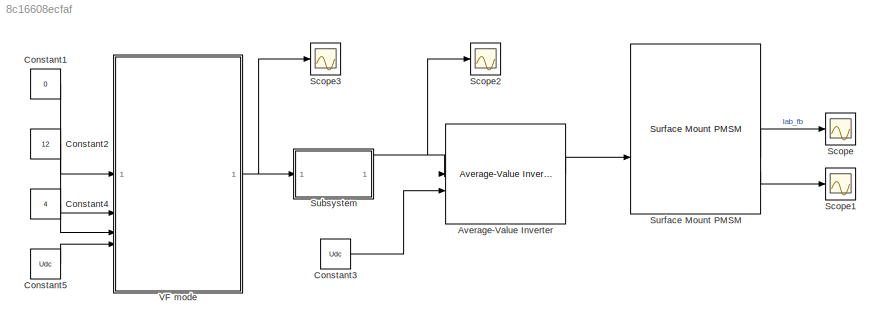
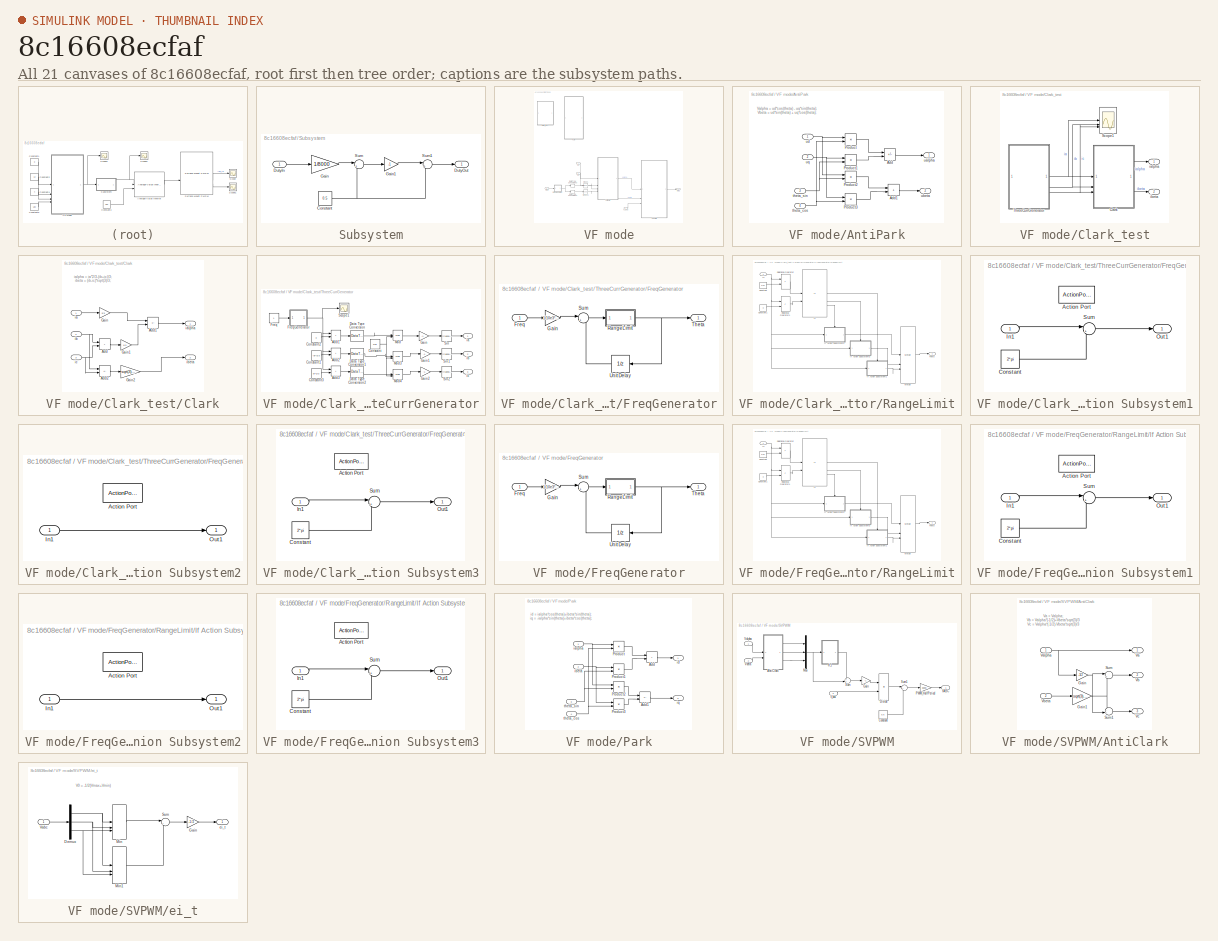
[diagram: thumbnail index - all 21 canvases of the model, root first then tree order]
MODEL slx_8c16608ecfaf
KIND model
CONFIG AbsTol = auto
CONFIG EnableMultiTasking = off
CONFIG FixedStep = 1e-4
CONFIG MaxStep = auto
CONFIG MinStep = auto
CONFIG RelTol = 1e-3
CONFIG SampleTimeConstraint = Unconstrained
CONFIG SolverName = FixedStepAuto
CONFIG StartTime = 0.0
CONFIG StopTime = 10.0
BLOCK [Reference] Average-Value Inverter  REF=mcbplantlib/Average-Value Inverter
  SourceBlock = mcbplantlib/Average-Value Inverter
  SourceType = Average Value Inverter
BLOCK [Constant] Constant1
  OutDataTypeStr = single
  Value = 0
BLOCK [Constant] Constant2
  OutDataTypeStr = single
  Value = 12
BLOCK [Constant] Constant3
  Value = Udc
BLOCK [Constant] Constant4
  OutDataTypeStr = single
  Value = 4
BLOCK [Constant] Constant5
  OutDataTypeStr = single
  Value = Udc
BLOCK [Scope] Scope
  Floating = off
  NumInputPorts = 1
  ScopeSpecificationString = Simulink.scopes.TimeScopeBlockCfg('CurrentConfiguration', extmgr.ConfigurationSet(extmgr.Configuration('Core','General UI',true),extmgr.Configuration('Core','Source UI',true),extmgr.Configuration('Sources','WiredSimulink',true,'DataLoggingVariableName','ScopeData1'),extmgr.Configuration('Visuals','Time Domain',true,'SerializedDisplays',{struct('MinYLimReal','-2.3164','MaxYLimReal','2.28591','YLabe...<+1814ch>
BLOCK [Scope] Scope1
  Floating = off
  NumInputPorts = 1
  ScopeSpecificationString = Simulink.scopes.TimeScopeBlockCfg('CurrentConfiguration', extmgr.ConfigurationSet(extmgr.Configuration('Core','General UI',true),extmgr.Configuration('Core','Source UI',true),extmgr.Configuration('Sources','WiredSimulink',true,'DataLoggingVariableName','ScopeData2'),extmgr.Configuration('Visuals','Time Domain',true,'SerializedDisplays',{struct('MinYLimReal','-33.79998','MaxYLimReal','39.59637','YL...<+1437ch>
BLOCK [Scope] Scope2
  Floating = off
  NumInputPorts = 1
  ScopeSpecificationString = Simulink.scopes.TimeScopeBlockCfg('CurrentConfiguration', extmgr.ConfigurationSet(extmgr.Configuration('Core','General UI',true),extmgr.Configuration('Core','Source UI',true),extmgr.Configuration('Sources','WiredSimulink',true,'DataLoggingVariableName','ScopeData1'),extmgr.Configuration('Visuals','Time Domain',true),extmgr.Configuration('Tools','Plot Navigation',true),extmgr.Configuration('Tools',...<+40ch>
BLOCK [Scope] Scope3
  Floating = off
  NumInputPorts = 1
  ScopeSpecificationString = Simulink.scopes.TimeScopeBlockCfg('CurrentConfiguration', extmgr.ConfigurationSet(extmgr.Configuration('Core','General UI',true),extmgr.Configuration('Core','Source UI',true),extmgr.Configuration('Sources','WiredSimulink',true,'DataLoggingVariableName','ScopeData2'),extmgr.Configuration('Visuals','Time Domain',true),extmgr.Configuration('Tools','Plot Navigation',true),extmgr.Configuration('Tools',...<+40ch>
BLOCK [SubSystem] Subsystem
  PortSchema = {"entries":[{"content":{"sides":[{"content":{"connectorIds":["In1"]},"type":"ConnectorPlacement.EquallySpacedRectSide","uuid":"8ccc51de-fa2a-4900-80a3-4cdf9aa76f01"},{"content":{"connectorIds":[],"side":"RIGHT"},"type":"ConnectorPlacement.EquallySpacedRectSide","uuid":"32c06e0d-3f1d-4948-af96-e310e54308a0"},{"content":{"connectorIds":["Out1"],"side":"TOP"},"type":"ConnectorPlacement.EquallySpacedR...<+240ch>
BLOCK [Constant] Subsystem/Constant
  SampleTime = -1
  Value = 0.5
BLOCK [Inport] Subsystem/DutyIn
BLOCK [Outport] Subsystem/DutyOut
BLOCK [Gain] Subsystem/Gain
  Gain = 1/8000
  ParamDataTypeStr = single
BLOCK [Gain] Subsystem/Gain1
  Gain = -1
BLOCK [Sum] Subsystem/Sum
  Inputs = |+-
BLOCK [Sum] Subsystem/Sum1
  Inputs = |++
BLOCK [Reference] Surface Mount PMSM  REF=autolibpmsmexterior/Surface Mount PMSM
  LibrarySourceBlock = mcblib/Electrical Systems/Motors/Surface Mount PMSM
  SourceBlock = autolibpmsmexterior/Surface Mount PMSM
  SourceType = Surface Mount PMSM
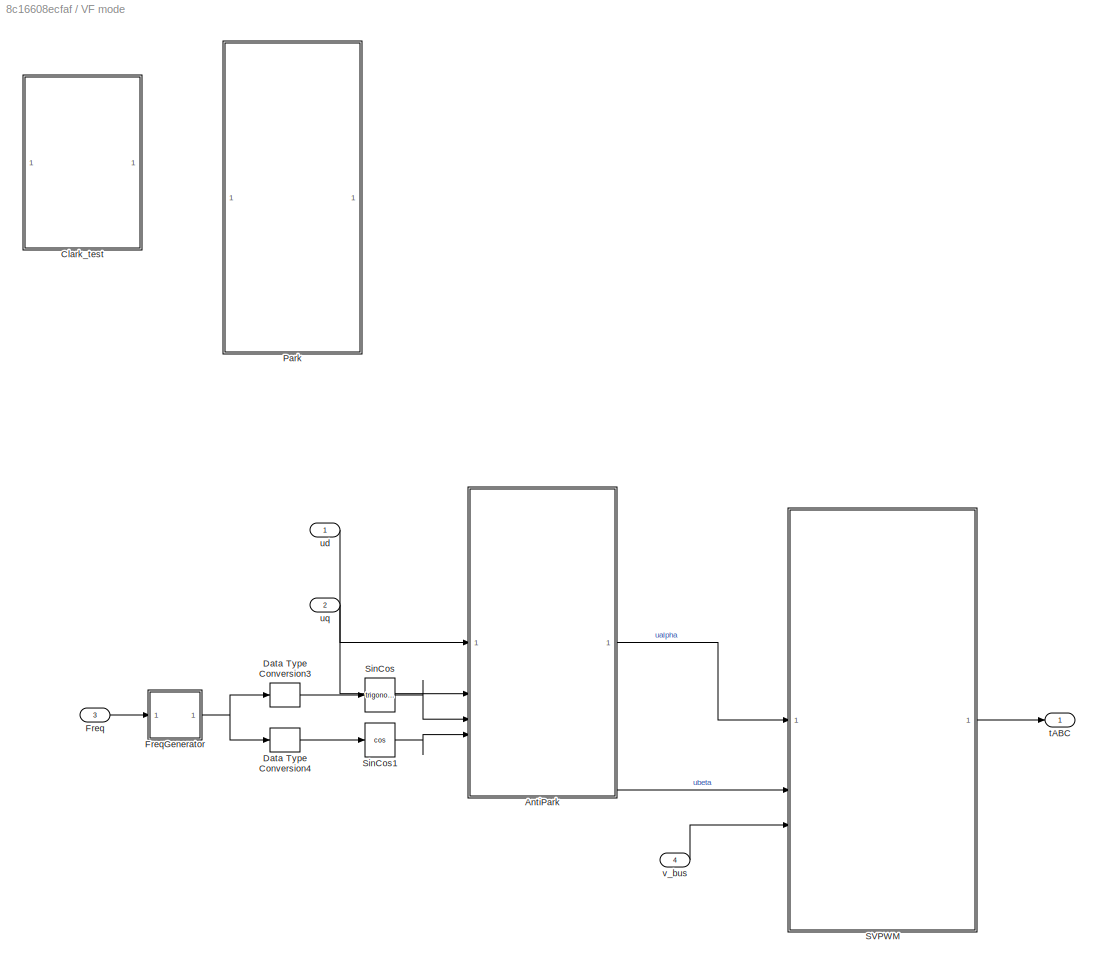
BLOCK [SubSystem] VF mode
  RTWSystemCode = Nonreusable function
  TreatAsAtomicUnit = on
BLOCK [SubSystem] VF mode/AntiPark
BLOCK [Sum] VF mode/AntiPark/Add
  IconShape = rectangular
  Inputs = +-
BLOCK [Sum] VF mode/AntiPark/Add1
  IconShape = rectangular
BLOCK [Product] VF mode/AntiPark/Product
BLOCK [Product] VF mode/AntiPark/Product1
BLOCK [Product] VF mode/AntiPark/Product2
BLOCK [Product] VF mode/AntiPark/Product3
BLOCK [Inport] VF mode/AntiPark/theta_cos
  Port = 4
BLOCK [Inport] VF mode/AntiPark/theta_sin
  Port = 3
BLOCK [Outport] VF mode/AntiPark/ualpha
  OutDataTypeStr = single
BLOCK [Outport] VF mode/AntiPark/ubeta
  OutDataTypeStr = single
  Port = 2
BLOCK [Inport] VF mode/AntiPark/ud
BLOCK [Inport] VF mode/AntiPark/uq
  Port = 2
BLOCK [SubSystem] VF mode/Clark_test
  Commented = on
  RTWSystemCode = Nonreusable function
  TreatAsAtomicUnit = on
BLOCK [SubSystem] VF mode/Clark_test/Clark
BLOCK [Sum] VF mode/Clark_test/Clark/Add
  AccumDataTypeStr = single
  IconShape = rectangular
  OutDataTypeStr = single
BLOCK [Sum] VF mode/Clark_test/Clark/Add1
  AccumDataTypeStr = single
  IconShape = rectangular
  Inputs = +-
  OutDataTypeStr = single
BLOCK [Sum] VF mode/Clark_test/Clark/Add2
  AccumDataTypeStr = single
  IconShape = rectangular
  Inputs = +-
  OutDataTypeStr = single
BLOCK [Gain] VF mode/Clark_test/Clark/Gain
  Gain = 2/3
  ParamDataTypeStr = single
BLOCK [Gain] VF mode/Clark_test/Clark/Gain1
  Gain = 1/3
  ParamDataTypeStr = single
BLOCK [Gain] VF mode/Clark_test/Clark/Gain2
  Gain = sqrt(3)/3
  ParamDataTypeStr = single
BLOCK [Inport] VF mode/Clark_test/Clark/ia
  OutDataTypeStr = single
BLOCK [Outport] VF mode/Clark_test/Clark/ialpha
  OutDataTypeStr = single
BLOCK [Inport] VF mode/Clark_test/Clark/ib
  OutDataTypeStr = single
  Port = 2
BLOCK [Outport] VF mode/Clark_test/Clark/ibeta
  OutDataTypeStr = single
  Port = 2
BLOCK [Inport] VF mode/Clark_test/Clark/ic
  OutDataTypeStr = single
  Port = 3
BLOCK [Scope] VF mode/Clark_test/Scope1
  Floating = off
  NumInputPorts = 3
  ScopeSpecificationString = Simulink.scopes.TimeScopeBlockCfg('CurrentConfiguration', extmgr.ConfigurationSet(extmgr.Configuration('Core','General UI',true),extmgr.Configuration('Core','Source UI',true),extmgr.Configuration('Sources','WiredSimulink',true),extmgr.Configuration('Visuals','Time Domain',true,'SerializedDisplays',{struct('MinYLimReal','-1.24999','MaxYLimReal','1.24994','YLabelReal','','MinYLimMag','0.00000','MaxY...<+1842ch>
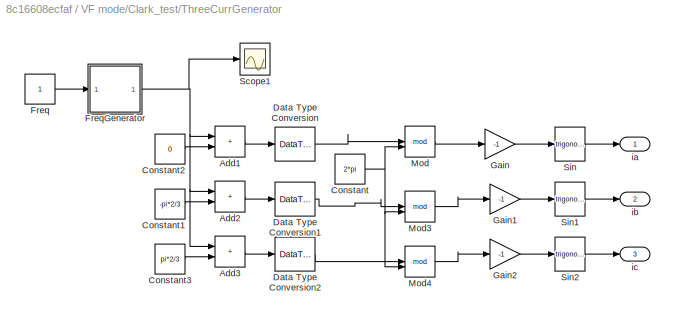
BLOCK [SubSystem] VF mode/Clark_test/ThreeCurrGenerator
BLOCK [Sum] VF mode/Clark_test/ThreeCurrGenerator/Add1
  AccumDataTypeStr = single
  IconShape = rectangular
  OutDataTypeStr = single
BLOCK [Sum] VF mode/Clark_test/ThreeCurrGenerator/Add2
  AccumDataTypeStr = single
  IconShape = rectangular
  OutDataTypeStr = single
BLOCK [Sum] VF mode/Clark_test/ThreeCurrGenerator/Add3
  AccumDataTypeStr = single
  IconShape = rectangular
  OutDataTypeStr = single
BLOCK [Constant] VF mode/Clark_test/ThreeCurrGenerator/Constant
  OutDataTypeStr = single
  Value = 2*pi
BLOCK [Constant] VF mode/Clark_test/ThreeCurrGenerator/Constant1
  OutDataTypeStr = single
  Value = -pi*2/3
BLOCK [Constant] VF mode/Clark_test/ThreeCurrGenerator/Constant2
  OutDataTypeStr = single
  Value = 0
BLOCK [Constant] VF mode/Clark_test/ThreeCurrGenerator/Constant3
  OutDataTypeStr = single
  Value = pi*2/3
BLOCK [DataTypeConversion] VF mode/Clark_test/ThreeCurrGenerator/Data Type Conversion
  OutDataTypeStr = single
  RndMeth = Floor
  SaturateOnIntegerOverflow = off
BLOCK [DataTypeConversion] VF mode/Clark_test/ThreeCurrGenerator/Data Type Conversion1
  OutDataTypeStr = single
  RndMeth = Floor
  SaturateOnIntegerOverflow = off
BLOCK [DataTypeConversion] VF mode/Clark_test/ThreeCurrGenerator/Data Type Conversion2
  OutDataTypeStr = single
  RndMeth = Floor
  SaturateOnIntegerOverflow = off
BLOCK [Constant] VF mode/Clark_test/ThreeCurrGenerator/Freq
  OutDataTypeStr = single
BLOCK [SubSystem] VF mode/Clark_test/ThreeCurrGenerator/FreqGenerator
BLOCK [Inport] VF mode/Clark_test/ThreeCurrGenerator/FreqGenerator/Freq
BLOCK [Gain] VF mode/Clark_test/ThreeCurrGenerator/FreqGenerator/Gain
  Gain = 1/10e3*2*pi
  OutDataTypeStr = single
BLOCK [SubSystem] VF mode/Clark_test/ThreeCurrGenerator/FreqGenerator/RangeLimit
BLOCK [Constant] VF mode/Clark_test/ThreeCurrGenerator/FreqGenerator/RangeLimit/Constant
  OutDataTypeStr = single
  SampleTime = -1
  Value = 2*pi
BLOCK [Constant] VF mode/Clark_test/ThreeCurrGenerator/FreqGenerator/RangeLimit/Constant1
  OutDataTypeStr = single
  SampleTime = -1
  Value = 0
BLOCK [If] VF mode/Clark_test/ThreeCurrGenerator/FreqGenerator/RangeLimit/If
  ElseIfExpressions = u2
  IfExpression = u1
  NumInputs = 2
BLOCK [SubSystem] VF mode/Clark_test/ThreeCurrGenerator/FreqGenerator/RangeLimit/If Action Subsystem1
  TreatAsAtomicUnit = on
BLOCK [ActionPort] VF mode/Clark_test/ThreeCurrGenerator/FreqGenerator/RangeLimit/If Action Subsystem1/Action Port
  ActionPortLabel = if(u1)
BLOCK [Constant] VF mode/Clark_test/ThreeCurrGenerator/FreqGenerator/RangeLimit/If Action Subsystem1/Constant
  OutDataTypeStr = single
  SampleTime = -1
  Value = 2*pi
BLOCK [Inport] VF mode/Clark_test/ThreeCurrGenerator/FreqGenerator/RangeLimit/If Action Subsystem1/In1
BLOCK [Outport] VF mode/Clark_test/ThreeCurrGenerator/FreqGenerator/RangeLimit/If Action Subsystem1/Out1
BLOCK [Sum] VF mode/Clark_test/ThreeCurrGenerator/FreqGenerator/RangeLimit/If Action Subsystem1/Sum
  Inputs = |+-
BLOCK [SubSystem] VF mode/Clark_test/ThreeCurrGenerator/FreqGenerator/RangeLimit/If Action Subsystem2
  TreatAsAtomicUnit = on
BLOCK [ActionPort] VF mode/Clark_test/ThreeCurrGenerator/FreqGenerator/RangeLimit/If Action Subsystem2/Action Port
  ActionPortLabel = else
BLOCK [Inport] VF mode/Clark_test/ThreeCurrGenerator/FreqGenerator/RangeLimit/If Action Subsystem2/In1
BLOCK [Outport] VF mode/Clark_test/ThreeCurrGenerator/FreqGenerator/RangeLimit/If Action Subsystem2/Out1
BLOCK [SubSystem] VF mode/Clark_test/ThreeCurrGenerator/FreqGenerator/RangeLimit/If Action Subsystem3
  TreatAsAtomicUnit = on
BLOCK [ActionPort] VF mode/Clark_test/ThreeCurrGenerator/FreqGenerator/RangeLimit/If Action Subsystem3/Action Port
  ActionPortLabel = elseif(u2)
BLOCK [Constant] VF mode/Clark_test/ThreeCurrGenerator/FreqGenerator/RangeLimit/If Action Subsystem3/Constant
  OutDataTypeStr = single
  SampleTime = -1
  Value = 2*pi
BLOCK [Inport] VF mode/Clark_test/ThreeCurrGenerator/FreqGenerator/RangeLimit/If Action Subsystem3/In1
BLOCK [Outport] VF mode/Clark_test/ThreeCurrGenerator/FreqGenerator/RangeLimit/If Action Subsystem3/Out1
BLOCK [Sum] VF mode/Clark_test/ThreeCurrGenerator/FreqGenerator/RangeLimit/If Action Subsystem3/Sum
  Inputs = |++
BLOCK [Inport] VF mode/Clark_test/ThreeCurrGenerator/FreqGenerator/RangeLimit/In
BLOCK [Merge] VF mode/Clark_test/ThreeCurrGenerator/FreqGenerator/RangeLimit/Merge
  Inputs = 3
BLOCK [RelationalOperator] VF mode/Clark_test/ThreeCurrGenerator/FreqGenerator/RangeLimit/Relational Operator
  InputSameDT = off
  Operator = >
  OutDataTypeStr = boolean
  RndMeth = Simplest
BLOCK [RelationalOperator] VF mode/Clark_test/ThreeCurrGenerator/FreqGenerator/RangeLimit/Relational Operator1
  InputSameDT = off
  Operator = <
  OutDataTypeStr = boolean
  RndMeth = Simplest
BLOCK [Outport] VF mode/Clark_test/ThreeCurrGenerator/FreqGenerator/RangeLimit/Theta
BLOCK [Sum] VF mode/Clark_test/ThreeCurrGenerator/FreqGenerator/Sum
  Inputs = |++
  OutDataTypeStr = Inherit: Same as first input
BLOCK [Outport] VF mode/Clark_test/ThreeCurrGenerator/FreqGenerator/Theta
BLOCK [UnitDelay] VF mode/Clark_test/ThreeCurrGenerator/FreqGenerator/Unit Delay
  HasFrameUpgradeWarning = on
  NameLocation = top
  SampleTime = -1
BLOCK [Gain] VF mode/Clark_test/ThreeCurrGenerator/Gain
  Gain = -1
BLOCK [Gain] VF mode/Clark_test/ThreeCurrGenerator/Gain1
  Gain = -1
BLOCK [Gain] VF mode/Clark_test/ThreeCurrGenerator/Gain2
  Gain = -1
BLOCK [Math] VF mode/Clark_test/ThreeCurrGenerator/Mod
  Operator = mod
BLOCK [Math] VF mode/Clark_test/ThreeCurrGenerator/Mod3
  Operator = mod
BLOCK [Math] VF mode/Clark_test/ThreeCurrGenerator/Mod4
  Operator = mod
BLOCK [Scope] VF mode/Clark_test/ThreeCurrGenerator/Scope1
  Floating = off
  NumInputPorts = 1
  ScopeSpecificationString = Simulink.scopes.TimeScopeBlockCfg('CurrentConfiguration', extmgr.ConfigurationSet(extmgr.Configuration('Core','General UI',true),extmgr.Configuration('Core','Source UI',true),extmgr.Configuration('Sources','WiredSimulink',true,'DataLoggingVariableName','ScopeData3'),extmgr.Configuration('Visuals','Time Domain',true,'SerializedDisplays',{struct('MinYLimReal','-0.78536','MaxYLimReal','7.06826','YLab...<+1372ch>
BLOCK [Trigonometry] VF mode/Clark_test/ThreeCurrGenerator/Sin
  ApproximationMethod = Lookup
BLOCK [Trigonometry] VF mode/Clark_test/ThreeCurrGenerator/Sin1
  ApproximationMethod = Lookup
BLOCK [Trigonometry] VF mode/Clark_test/ThreeCurrGenerator/Sin2
  ApproximationMethod = Lookup
BLOCK [Outport] VF mode/Clark_test/ThreeCurrGenerator/ia
BLOCK [Outport] VF mode/Clark_test/ThreeCurrGenerator/ib
  Port = 2
BLOCK [Outport] VF mode/Clark_test/ThreeCurrGenerator/ic
  Port = 3
BLOCK [Outport] VF mode/Clark_test/ialpha
BLOCK [Outport] VF mode/Clark_test/ibeta
  Port = 2
BLOCK [DataTypeConversion] VF mode/Data Type Conversion3
  OutDataTypeStr = single
  RndMeth = Floor
  SaturateOnIntegerOverflow = off
BLOCK [DataTypeConversion] VF mode/Data Type Conversion4
  OutDataTypeStr = single
  RndMeth = Floor
  SaturateOnIntegerOverflow = off
BLOCK [Inport] VF mode/Freq
  Port = 3
BLOCK [SubSystem] VF mode/FreqGenerator
BLOCK [Inport] VF mode/FreqGenerator/Freq
BLOCK [Gain] VF mode/FreqGenerator/Gain
  Gain = 1/10e3*2*pi
  OutDataTypeStr = single
BLOCK [SubSystem] VF mode/FreqGenerator/RangeLimit
BLOCK [Constant] VF mode/FreqGenerator/RangeLimit/Constant
  OutDataTypeStr = single
  SampleTime = -1
  Value = 2*pi
BLOCK [Constant] VF mode/FreqGenerator/RangeLimit/Constant1
  OutDataTypeStr = single
  SampleTime = -1
  Value = 0
BLOCK [If] VF mode/FreqGenerator/RangeLimit/If
  ElseIfExpressions = u2
  IfExpression = u1
  NumInputs = 2
BLOCK [SubSystem] VF mode/FreqGenerator/RangeLimit/If Action Subsystem1
  TreatAsAtomicUnit = on
BLOCK [ActionPort] VF mode/FreqGenerator/RangeLimit/If Action Subsystem1/Action Port
  ActionPortLabel = if(u1)
BLOCK [Constant] VF mode/FreqGenerator/RangeLimit/If Action Subsystem1/Constant
  OutDataTypeStr = single
  SampleTime = -1
  Value = 2*pi
BLOCK [Inport] VF mode/FreqGenerator/RangeLimit/If Action Subsystem1/In1
BLOCK [Outport] VF mode/FreqGenerator/RangeLimit/If Action Subsystem1/Out1
BLOCK [Sum] VF mode/FreqGenerator/RangeLimit/If Action Subsystem1/Sum
  Inputs = |+-
BLOCK [SubSystem] VF mode/FreqGenerator/RangeLimit/If Action Subsystem2
  TreatAsAtomicUnit = on
BLOCK [ActionPort] VF mode/FreqGenerator/RangeLimit/If Action Subsystem2/Action Port
  ActionPortLabel = else
BLOCK [Inport] VF mode/FreqGenerator/RangeLimit/If Action Subsystem2/In1
BLOCK [Outport] VF mode/FreqGenerator/RangeLimit/If Action Subsystem2/Out1
BLOCK [SubSystem] VF mode/FreqGenerator/RangeLimit/If Action Subsystem3
  TreatAsAtomicUnit = on
BLOCK [ActionPort] VF mode/FreqGenerator/RangeLimit/If Action Subsystem3/Action Port
  ActionPortLabel = elseif(u2)
BLOCK [Constant] VF mode/FreqGenerator/RangeLimit/If Action Subsystem3/Constant
  OutDataTypeStr = single
  SampleTime = -1
  Value = 2*pi
BLOCK [Inport] VF mode/FreqGenerator/RangeLimit/If Action Subsystem3/In1
BLOCK [Outport] VF mode/FreqGenerator/RangeLimit/If Action Subsystem3/Out1
BLOCK [Sum] VF mode/FreqGenerator/RangeLimit/If Action Subsystem3/Sum
  Inputs = |++
BLOCK [Inport] VF mode/FreqGenerator/RangeLimit/In
BLOCK [Merge] VF mode/FreqGenerator/RangeLimit/Merge
  Inputs = 3
BLOCK [RelationalOperator] VF mode/FreqGenerator/RangeLimit/Relational Operator
  InputSameDT = off
  Operator = >
  OutDataTypeStr = boolean
  RndMeth = Simplest
BLOCK [RelationalOperator] VF mode/FreqGenerator/RangeLimit/Relational Operator1
  InputSameDT = off
  Operator = <
  OutDataTypeStr = boolean
  RndMeth = Simplest
BLOCK [Outport] VF mode/FreqGenerator/RangeLimit/Theta
BLOCK [Sum] VF mode/FreqGenerator/Sum
  Inputs = |++
  OutDataTypeStr = Inherit: Same as first input
BLOCK [Outport] VF mode/FreqGenerator/Theta
BLOCK [UnitDelay] VF mode/FreqGenerator/Unit Delay
  HasFrameUpgradeWarning = on
  NameLocation = top
  SampleTime = -1
BLOCK [SubSystem] VF mode/Park
  Commented = on
BLOCK [Sum] VF mode/Park/Add
  AccumDataTypeStr = single
  IconShape = rectangular
  OutDataTypeStr = single
BLOCK [Sum] VF mode/Park/Add1
  AccumDataTypeStr = single
  IconShape = rectangular
  Inputs = -+
  OutDataTypeStr = single
BLOCK [Product] VF mode/Park/Product
  OutDataTypeStr = single
BLOCK [Product] VF mode/Park/Product1
  OutDataTypeStr = single
BLOCK [Product] VF mode/Park/Product2
  OutDataTypeStr = single
BLOCK [Product] VF mode/Park/Product3
  OutDataTypeStr = single
BLOCK [Inport] VF mode/Park/ialpha
  OutDataTypeStr = single
BLOCK [Inport] VF mode/Park/ibeta
  OutDataTypeStr = single
  Port = 2
BLOCK [Outport] VF mode/Park/id
  OutDataTypeStr = single
BLOCK [Outport] VF mode/Park/iq
  OutDataTypeStr = single
  Port = 2
BLOCK [Inport] VF mode/Park/theta_cos
  OutDataTypeStr = single
  Port = 4
BLOCK [Inport] VF mode/Park/theta_sin
  OutDataTypeStr = single
  Port = 3
BLOCK [SubSystem] VF mode/SVPWM
  RTWSystemCode = Reusable function
  TreatAsAtomicUnit = on
BLOCK [SubSystem] VF mode/SVPWM/AntiClark
BLOCK [Gain] VF mode/SVPWM/AntiClark/Gain
  Gain = -1/2
  OutDataTypeStr = single
BLOCK [Gain] VF mode/SVPWM/AntiClark/Gain1
  Gain = sqrt(3)/2
  OutDataTypeStr = single
BLOCK [Sum] VF mode/SVPWM/AntiClark/Sum
  Inputs = |++
  OutDataTypeStr = single
BLOCK [Sum] VF mode/SVPWM/AntiClark/Sum1
  Inputs = -+|
  OutDataTypeStr = single
BLOCK [Outport] VF mode/SVPWM/AntiClark/Va
  OutDataTypeStr = single
BLOCK [Inport] VF mode/SVPWM/AntiClark/Valpha
  OutDataTypeStr = single
BLOCK [Outport] VF mode/SVPWM/AntiClark/Vb
  OutDataTypeStr = single
  Port = 2
BLOCK [Inport] VF mode/SVPWM/AntiClark/Vbeta
  OutDataTypeStr = single
  Port = 2
BLOCK [Outport] VF mode/SVPWM/AntiClark/Vc
  OutDataTypeStr = single
  Port = 3
BLOCK [Constant] VF mode/SVPWM/Constant
  OutDataTypeStr = single
  Value = 0.5
BLOCK [Product] VF mode/SVPWM/Divide
  Inputs = */
  OutDataTypeStr = single
BLOCK [Gain] VF mode/SVPWM/Gain
  Gain = -1
  OutDataTypeStr = single
BLOCK [Mux] VF mode/SVPWM/Mux
  DisplayOption = bar
  Inputs = 3
BLOCK [Gain] VF mode/SVPWM/PWM_HalfPeriod
  Gain = 8000
  OutDataTypeStr = single
BLOCK [Sum] VF mode/SVPWM/Sum
  Inputs = ++|
  OutDataTypeStr = single
BLOCK [Sum] VF mode/SVPWM/Sum1
  Inputs = |++
  OutDataTypeStr = single
BLOCK [Inport] VF mode/SVPWM/Valpha
  OutDataTypeStr = single
BLOCK [Inport] VF mode/SVPWM/Vbeta
  OutDataTypeStr = single
  Port = 2
BLOCK [SubSystem] VF mode/SVPWM/ei_t
BLOCK [Demux] VF mode/SVPWM/ei_t/Demux
  Outputs = 3
BLOCK [Gain] VF mode/SVPWM/ei_t/Gain
  Gain = -1/2
  OutDataTypeStr = single
BLOCK [MinMax] VF mode/SVPWM/ei_t/Min
  Inputs = 3
  OutDataTypeStr = single
BLOCK [MinMax] VF mode/SVPWM/ei_t/Min1
  Function = max
  Inputs = 3
  OutDataTypeStr = single
BLOCK [Sum] VF mode/SVPWM/ei_t/Sum
  Inputs = |++
  OutDataTypeStr = single
BLOCK [Inport] VF mode/SVPWM/ei_t/Vabc
  OutDataTypeStr = single
BLOCK [Outport] VF mode/SVPWM/ei_t/ei_t
  OutDataTypeStr = single
BLOCK [Outport] VF mode/SVPWM/tABC
  OutDataTypeStr = single
BLOCK [Inport] VF mode/SVPWM/v_bus
  OutDataTypeStr = single
  Port = 3
BLOCK [Trigonometry] VF mode/SinCos
  ApproximationMethod = Lookup
BLOCK [Trigonometry] VF mode/SinCos1
  ApproximationMethod = Lookup
  Operator = cos
BLOCK [Outport] VF mode/tABC
BLOCK [Inport] VF mode/ud
BLOCK [Inport] VF mode/uq
  Port = 2
BLOCK [Inport] VF mode/v_bus
  Port = 4
ANNOTATION VF mode/AntiPark: Valpha = ud*cos(theta) - uq*sin(theta); Vbeta = ud*sin(theta) + uq*cos(theta);
ANNOTATION VF mode/Clark_test/Clark: ialpha = ia*2/3-(ib+ic)/3; ibeta = (ib-ic)*sqrt(3)/3;
ANNOTATION VF mode/Park: id = ialpha*cos(theta)+ibeta*sin(theta); iq = -ialpha*sin(theta)+ibeta*cos(theta);
ANNOTATION VF mode/SVPWM/AntiClark: Va = Valpha; Vb = Valpha*(-1/2)+Vbeta*sqrt(3)/3 Vc = Valpha*(-1/2)-Vbeta*sqrt(3)/3
ANNOTATION VF mode/SVPWM/ei_t: V0 = -1/2(Vmax+Vmin)
LINE Average-Value Inverter:1 -> Surface Mount PMSM:2
LINE Constant1:1 -> VF mode:1
LINE Constant2:1 -> VF mode:2
LINE Constant3:1 -> Average-Value Inverter:2
LINE Constant4:1 -> VF mode:3
LINE Constant5:1 -> VF mode:4
NET Subsystem/Constant:1 -> Subsystem/Sum1:2, Subsystem/Sum:2
LINE Subsystem/DutyIn:1 -> Subsystem/Gain:1
LINE Subsystem/Gain1:1 -> Subsystem/Sum1:1
LINE Subsystem/Gain:1 -> Subsystem/Sum:1
LINE Subsystem/Sum1:1 -> Subsystem/DutyOut:1
LINE Subsystem/Sum:1 -> Subsystem/Gain1:1
NET Subsystem:1 -> Average-Value Inverter:1, Scope2:1
LINE Surface Mount PMSM:2 -> Scope:1
LINE Surface Mount PMSM:3 -> Scope1:1
LINE VF mode/AntiPark/Add1:1 -> VF mode/AntiPark/ubeta:1
LINE VF mode/AntiPark/Add:1 -> VF mode/AntiPark/ualpha:1
LINE VF mode/AntiPark/Product1:1 -> VF mode/AntiPark/Add:2
LINE VF mode/AntiPark/Product2:1 -> VF mode/AntiPark/Add1:1
LINE VF mode/AntiPark/Product3:1 -> VF mode/AntiPark/Add1:2
LINE VF mode/AntiPark/Product:1 -> VF mode/AntiPark/Add:1
NET VF mode/AntiPark/theta_cos:1 -> VF mode/AntiPark/Product3:2, VF mode/AntiPark/Product:2
NET VF mode/AntiPark/theta_sin:1 -> VF mode/AntiPark/Product1:2, VF mode/AntiPark/Product2:2
NET VF mode/AntiPark/ud:1 -> VF mode/AntiPark/Product2:1, VF mode/AntiPark/Product:1
NET VF mode/AntiPark/uq:1 -> VF mode/AntiPark/Product1:1, VF mode/AntiPark/Product3:1
LINE VF mode/AntiPark:1 -> VF mode/SVPWM:1
LINE VF mode/AntiPark:2 -> VF mode/SVPWM:2
LINE VF mode/Clark_test/Clark/Add1:1 -> VF mode/Clark_test/Clark/ialpha:1
LINE VF mode/Clark_test/Clark/Add2:1 -> VF mode/Clark_test/Clark/Gain2:1
LINE VF mode/Clark_test/Clark/Add:1 -> VF mode/Clark_test/Clark/Gain1:1
LINE VF mode/Clark_test/Clark/Gain1:1 -> VF mode/Clark_test/Clark/Add1:2
LINE VF mode/Clark_test/Clark/Gain2:1 -> VF mode/Clark_test/Clark/ibeta:1
LINE VF mode/Clark_test/Clark/Gain:1 -> VF mode/Clark_test/Clark/Add1:1
LINE VF mode/Clark_test/Clark/ia:1 -> VF mode/Clark_test/Clark/Gain:1
NET VF mode/Clark_test/Clark/ib:1 -> VF mode/Clark_test/Clark/Add2:1, VF mode/Clark_test/Clark/Add:1
NET VF mode/Clark_test/Clark/ic:1 -> VF mode/Clark_test/Clark/Add2:2, VF mode/Clark_test/Clark/Add:2
LINE VF mode/Clark_test/Clark:1 -> VF mode/Clark_test/ialpha:1
LINE VF mode/Clark_test/Clark:2 -> VF mode/Clark_test/ibeta:1
LINE VF mode/Clark_test/ThreeCurrGenerator/Add1:1 -> VF mode/Clark_test/ThreeCurrGenerator/Data Type Conversion:1
LINE VF mode/Clark_test/ThreeCurrGenerator/Add2:1 -> VF mode/Clark_test/ThreeCurrGenerator/Data Type Conversion1:1
LINE VF mode/Clark_test/ThreeCurrGenerator/Add3:1 -> VF mode/Clark_test/ThreeCurrGenerator/Data Type Conversion2:1
LINE VF mode/Clark_test/ThreeCurrGenerator/Constant1:1 -> VF mode/Clark_test/ThreeCurrGenerator/Add2:2
LINE VF mode/Clark_test/ThreeCurrGenerator/Constant2:1 -> VF mode/Clark_test/ThreeCurrGenerator/Add1:2
LINE VF mode/Clark_test/ThreeCurrGenerator/Constant3:1 -> VF mode/Clark_test/ThreeCurrGenerator/Add3:2
NET VF mode/Clark_test/ThreeCurrGenerator/Constant:1 -> VF mode/Clark_test/ThreeCurrGenerator/Mod3:2, VF mode/Clark_test/ThreeCurrGenerator/Mod4:2, VF mode/Clark_test/ThreeCurrGenerator/Mod:2
LINE VF mode/Clark_test/ThreeCurrGenerator/Data Type Conversion1:1 -> VF mode/Clark_test/ThreeCurrGenerator/Mod3:1
LINE VF mode/Clark_test/ThreeCurrGenerator/Data Type Conversion2:1 -> VF mode/Clark_test/ThreeCurrGenerator/Mod4:1
LINE VF mode/Clark_test/ThreeCurrGenerator/Data Type Conversion:1 -> VF mode/Clark_test/ThreeCurrGenerator/Mod:1
LINE VF mode/Clark_test/ThreeCurrGenerator/Freq:1 -> VF mode/Clark_test/ThreeCurrGenerator/FreqGenerator:1
LINE VF mode/Clark_test/ThreeCurrGenerator/FreqGenerator/Freq:1 -> VF mode/Clark_test/ThreeCurrGenerator/FreqGenerator/Gain:1
LINE VF mode/Clark_test/ThreeCurrGenerator/FreqGenerator/Gain:1 -> VF mode/Clark_test/ThreeCurrGenerator/FreqGenerator/Sum:1
LINE VF mode/Clark_test/ThreeCurrGenerator/FreqGenerator/RangeLimit/Constant1:1 -> VF mode/Clark_test/ThreeCurrGenerator/FreqGenerator/RangeLimit/Relational Operator1:2
LINE VF mode/Clark_test/ThreeCurrGenerator/FreqGenerator/RangeLimit/Constant:1 -> VF mode/Clark_test/ThreeCurrGenerator/FreqGenerator/RangeLimit/Relational Operator:2
LINE VF mode/Clark_test/ThreeCurrGenerator/FreqGenerator/RangeLimit/If Action Subsystem1/Constant:1 -> VF mode/Clark_test/ThreeCurrGenerator/FreqGenerator/RangeLimit/If Action Subsystem1/Sum:2
LINE VF mode/Clark_test/ThreeCurrGenerator/FreqGenerator/RangeLimit/If Action Subsystem1/In1:1 -> VF mode/Clark_test/ThreeCurrGenerator/FreqGenerator/RangeLimit/If Action Subsystem1/Sum:1
LINE VF mode/Clark_test/ThreeCurrGenerator/FreqGenerator/RangeLimit/If Action Subsystem1/Sum:1 -> VF mode/Clark_test/ThreeCurrGenerator/FreqGenerator/RangeLimit/If Action Subsystem1/Out1:1
LINE VF mode/Clark_test/ThreeCurrGenerator/FreqGenerator/RangeLimit/If Action Subsystem1:1 -> VF mode/Clark_test/ThreeCurrGenerator/FreqGenerator/RangeLimit/Merge:3
LINE VF mode/Clark_test/ThreeCurrGenerator/FreqGenerator/RangeLimit/If Action Subsystem2/In1:1 -> VF mode/Clark_test/ThreeCurrGenerator/FreqGenerator/RangeLimit/If Action Subsystem2/Out1:1
LINE VF mode/Clark_test/ThreeCurrGenerator/FreqGenerator/RangeLimit/If Action Subsystem2:1 -> VF mode/Clark_test/ThreeCurrGenerator/FreqGenerator/RangeLimit/Merge:1
LINE VF mode/Clark_test/ThreeCurrGenerator/FreqGenerator/RangeLimit/If Action Subsystem3/Constant:1 -> VF mode/Clark_test/ThreeCurrGenerator/FreqGenerator/RangeLimit/If Action Subsystem3/Sum:2
LINE VF mode/Clark_test/ThreeCurrGenerator/FreqGenerator/RangeLimit/If Action Subsystem3/In1:1 -> VF mode/Clark_test/ThreeCurrGenerator/FreqGenerator/RangeLimit/If Action Subsystem3/Sum:1
LINE VF mode/Clark_test/ThreeCurrGenerator/FreqGenerator/RangeLimit/If Action Subsystem3/Sum:1 -> VF mode/Clark_test/ThreeCurrGenerator/FreqGenerator/RangeLimit/If Action Subsystem3/Out1:1
LINE VF mode/Clark_test/ThreeCurrGenerator/FreqGenerator/RangeLimit/If Action Subsystem3:1 -> VF mode/Clark_test/ThreeCurrGenerator/FreqGenerator/RangeLimit/Merge:2
LINE VF mode/Clark_test/ThreeCurrGenerator/FreqGenerator/RangeLimit/If:1 -> VF mode/Clark_test/ThreeCurrGenerator/FreqGenerator/RangeLimit/If Action Subsystem1:ifaction
LINE VF mode/Clark_test/ThreeCurrGenerator/FreqGenerator/RangeLimit/If:2 -> VF mode/Clark_test/ThreeCurrGenerator/FreqGenerator/RangeLimit/If Action Subsystem3:ifaction
LINE VF mode/Clark_test/ThreeCurrGenerator/FreqGenerator/RangeLimit/If:3 -> VF mode/Clark_test/ThreeCurrGenerator/FreqGenerator/RangeLimit/If Action Subsystem2:ifaction
NET VF mode/Clark_test/ThreeCurrGenerator/FreqGenerator/RangeLimit/In:1 -> VF mode/Clark_test/ThreeCurrGenerator/FreqGenerator/RangeLimit/If Action Subsystem1:1, VF mode/Clark_test/ThreeCurrGenerator/FreqGenerator/RangeLimit/If Action Subsystem2:1, VF mode/Clark_test/ThreeCurrGenerator/FreqGenerator/RangeLimit/If Action Subsystem3:1, VF mode/Clark_test/ThreeCurrGenerator/FreqGenerator/RangeLimit/Relational Operator1:1, VF mode/Clark_test/ThreeCurrGenerator/FreqGenerator/RangeLimit/Relational Operator:1
LINE VF mode/Clark_test/ThreeCurrGenerator/FreqGenerator/RangeLimit/Merge:1 -> VF mode/Clark_test/ThreeCurrGenerator/FreqGenerator/RangeLimit/Theta:1
LINE VF mode/Clark_test/ThreeCurrGenerator/FreqGenerator/RangeLimit/Relational Operator1:1 -> VF mode/Clark_test/ThreeCurrGenerator/FreqGenerator/RangeLimit/If:2
LINE VF mode/Clark_test/ThreeCurrGenerator/FreqGenerator/RangeLimit/Relational Operator:1 -> VF mode/Clark_test/ThreeCurrGenerator/FreqGenerator/RangeLimit/If:1
NET VF mode/Clark_test/ThreeCurrGenerator/FreqGenerator/RangeLimit:1 -> VF mode/Clark_test/ThreeCurrGenerator/FreqGenerator/Theta:1, VF mode/Clark_test/ThreeCurrGenerator/FreqGenerator/Unit Delay:1
LINE VF mode/Clark_test/ThreeCurrGenerator/FreqGenerator/Sum:1 -> VF mode/Clark_test/ThreeCurrGenerator/FreqGenerator/RangeLimit:1
LINE VF mode/Clark_test/ThreeCurrGenerator/FreqGenerator/Unit Delay:1 -> VF mode/Clark_test/ThreeCurrGenerator/FreqGenerator/Sum:2
NET VF mode/Clark_test/ThreeCurrGenerator/FreqGenerator:1 -> VF mode/Clark_test/ThreeCurrGenerator/Add1:1, VF mode/Clark_test/ThreeCurrGenerator/Add2:1, VF mode/Clark_test/ThreeCurrGenerator/Add3:1, VF mode/Clark_test/ThreeCurrGenerator/Scope1:1
LINE VF mode/Clark_test/ThreeCurrGenerator/Gain1:1 -> VF mode/Clark_test/ThreeCurrGenerator/Sin1:1
LINE VF mode/Clark_test/ThreeCurrGenerator/Gain2:1 -> VF mode/Clark_test/ThreeCurrGenerator/Sin2:1
LINE VF mode/Clark_test/ThreeCurrGenerator/Gain:1 -> VF mode/Clark_test/ThreeCurrGenerator/Sin:1
LINE VF mode/Clark_test/ThreeCurrGenerator/Mod3:1 -> VF mode/Clark_test/ThreeCurrGenerator/Gain1:1
LINE VF mode/Clark_test/ThreeCurrGenerator/Mod4:1 -> VF mode/Clark_test/ThreeCurrGenerator/Gain2:1
LINE VF mode/Clark_test/ThreeCurrGenerator/Mod:1 -> VF mode/Clark_test/ThreeCurrGenerator/Gain:1
LINE VF mode/Clark_test/ThreeCurrGenerator/Sin1:1 -> VF mode/Clark_test/ThreeCurrGenerator/ib:1
LINE VF mode/Clark_test/ThreeCurrGenerator/Sin2:1 -> VF mode/Clark_test/ThreeCurrGenerator/ic:1
LINE VF mode/Clark_test/ThreeCurrGenerator/Sin:1 -> VF mode/Clark_test/ThreeCurrGenerator/ia:1
NET VF mode/Clark_test/ThreeCurrGenerator:1 -> VF mode/Clark_test/Clark:1, VF mode/Clark_test/Scope1:1
NET VF mode/Clark_test/ThreeCurrGenerator:2 -> VF mode/Clark_test/Clark:2, VF mode/Clark_test/Scope1:2
NET VF mode/Clark_test/ThreeCurrGenerator:3 -> VF mode/Clark_test/Clark:3, VF mode/Clark_test/Scope1:3
LINE VF mode/Data Type Conversion3:1 -> VF mode/SinCos:1
LINE VF mode/Data Type Conversion4:1 -> VF mode/SinCos1:1
LINE VF mode/Freq:1 -> VF mode/FreqGenerator:1
LINE VF mode/FreqGenerator/Freq:1 -> VF mode/FreqGenerator/Gain:1
LINE VF mode/FreqGenerator/Gain:1 -> VF mode/FreqGenerator/Sum:1
LINE VF mode/FreqGenerator/RangeLimit/Constant1:1 -> VF mode/FreqGenerator/RangeLimit/Relational Operator1:2
LINE VF mode/FreqGenerator/RangeLimit/Constant:1 -> VF mode/FreqGenerator/RangeLimit/Relational Operator:2
LINE VF mode/FreqGenerator/RangeLimit/If Action Subsystem1/Constant:1 -> VF mode/FreqGenerator/RangeLimit/If Action Subsystem1/Sum:2
LINE VF mode/FreqGenerator/RangeLimit/If Action Subsystem1/In1:1 -> VF mode/FreqGenerator/RangeLimit/If Action Subsystem1/Sum:1
LINE VF mode/FreqGenerator/RangeLimit/If Action Subsystem1/Sum:1 -> VF mode/FreqGenerator/RangeLimit/If Action Subsystem1/Out1:1
LINE VF mode/FreqGenerator/RangeLimit/If Action Subsystem1:1 -> VF mode/FreqGenerator/RangeLimit/Merge:3
LINE VF mode/FreqGenerator/RangeLimit/If Action Subsystem2/In1:1 -> VF mode/FreqGenerator/RangeLimit/If Action Subsystem2/Out1:1
LINE VF mode/FreqGenerator/RangeLimit/If Action Subsystem2:1 -> VF mode/FreqGenerator/RangeLimit/Merge:1
LINE VF mode/FreqGenerator/RangeLimit/If Action Subsystem3/Constant:1 -> VF mode/FreqGenerator/RangeLimit/If Action Subsystem3/Sum:2
LINE VF mode/FreqGenerator/RangeLimit/If Action Subsystem3/In1:1 -> VF mode/FreqGenerator/RangeLimit/If Action Subsystem3/Sum:1
LINE VF mode/FreqGenerator/RangeLimit/If Action Subsystem3/Sum:1 -> VF mode/FreqGenerator/RangeLimit/If Action Subsystem3/Out1:1
LINE VF mode/FreqGenerator/RangeLimit/If Action Subsystem3:1 -> VF mode/FreqGenerator/RangeLimit/Merge:2
LINE VF mode/FreqGenerator/RangeLimit/If:1 -> VF mode/FreqGenerator/RangeLimit/If Action Subsystem1:ifaction
LINE VF mode/FreqGenerator/RangeLimit/If:2 -> VF mode/FreqGenerator/RangeLimit/If Action Subsystem3:ifaction
LINE VF mode/FreqGenerator/RangeLimit/If:3 -> VF mode/FreqGenerator/RangeLimit/If Action Subsystem2:ifaction
NET VF mode/FreqGenerator/RangeLimit/In:1 -> VF mode/FreqGenerator/RangeLimit/If Action Subsystem1:1, VF mode/FreqGenerator/RangeLimit/If Action Subsystem2:1, VF mode/FreqGenerator/RangeLimit/If Action Subsystem3:1, VF mode/FreqGenerator/RangeLimit/Relational Operator1:1, VF mode/FreqGenerator/RangeLimit/Relational Operator:1
LINE VF mode/FreqGenerator/RangeLimit/Merge:1 -> VF mode/FreqGenerator/RangeLimit/Theta:1
LINE VF mode/FreqGenerator/RangeLimit/Relational Operator1:1 -> VF mode/FreqGenerator/RangeLimit/If:2
LINE VF mode/FreqGenerator/RangeLimit/Relational Operator:1 -> VF mode/FreqGenerator/RangeLimit/If:1
NET VF mode/FreqGenerator/RangeLimit:1 -> VF mode/FreqGenerator/Theta:1, VF mode/FreqGenerator/Unit Delay:1
LINE VF mode/FreqGenerator/Sum:1 -> VF mode/FreqGenerator/RangeLimit:1
LINE VF mode/FreqGenerator/Unit Delay:1 -> VF mode/FreqGenerator/Sum:2
NET VF mode/FreqGenerator:1 -> VF mode/Data Type Conversion3:1, VF mode/Data Type Conversion4:1
LINE VF mode/Park/Add1:1 -> VF mode/Park/iq:1
LINE VF mode/Park/Add:1 -> VF mode/Park/id:1
LINE VF mode/Park/Product1:1 -> VF mode/Park/Add:2
LINE VF mode/Park/Product2:1 -> VF mode/Park/Add1:1
LINE VF mode/Park/Product3:1 -> VF mode/Park/Add1:2
LINE VF mode/Park/Product:1 -> VF mode/Park/Add:1
NET VF mode/Park/ialpha:1 -> VF mode/Park/Product2:1, VF mode/Park/Product:1
NET VF mode/Park/ibeta:1 -> VF mode/Park/Product1:1, VF mode/Park/Product3:1
NET VF mode/Park/theta_cos:1 -> VF mode/Park/Product3:2, VF mode/Park/Product:2
NET VF mode/Park/theta_sin:1 -> VF mode/Park/Product1:2, VF mode/Park/Product2:2
NET VF mode/SVPWM/AntiClark/Gain1:1 -> VF mode/SVPWM/AntiClark/Sum1:1, VF mode/SVPWM/AntiClark/Sum:2
NET VF mode/SVPWM/AntiClark/Gain:1 -> VF mode/SVPWM/AntiClark/Sum1:2, VF mode/SVPWM/AntiClark/Sum:1
LINE VF mode/SVPWM/AntiClark/Sum1:1 -> VF mode/SVPWM/AntiClark/Vc:1
LINE VF mode/SVPWM/AntiClark/Sum:1 -> VF mode/SVPWM/AntiClark/Vb:1
NET VF mode/SVPWM/AntiClark/Valpha:1 -> VF mode/SVPWM/AntiClark/Gain:1, VF mode/SVPWM/AntiClark/Va:1
LINE VF mode/SVPWM/AntiClark/Vbeta:1 -> VF mode/SVPWM/AntiClark/Gain1:1
LINE VF mode/SVPWM/AntiClark:1 -> VF mode/SVPWM/Mux:1
LINE VF mode/SVPWM/AntiClark:2 -> VF mode/SVPWM/Mux:2
LINE VF mode/SVPWM/AntiClark:3 -> VF mode/SVPWM/Mux:3
LINE VF mode/SVPWM/Constant:1 -> VF mode/SVPWM/Sum1:2
LINE VF mode/SVPWM/Divide:1 -> VF mode/SVPWM/Sum1:1
LINE VF mode/SVPWM/Gain:1 -> VF mode/SVPWM/Divide:1
NET VF mode/SVPWM/Mux:1 -> VF mode/SVPWM/Sum:2, VF mode/SVPWM/ei_t:1
LINE VF mode/SVPWM/PWM_HalfPeriod:1 -> VF mode/SVPWM/tABC:1
LINE VF mode/SVPWM/Sum1:1 -> VF mode/SVPWM/PWM_HalfPeriod:1
LINE VF mode/SVPWM/Sum:1 -> VF mode/SVPWM/Gain:1
LINE VF mode/SVPWM/Valpha:1 -> VF mode/SVPWM/AntiClark:1
LINE VF mode/SVPWM/Vbeta:1 -> VF mode/SVPWM/AntiClark:2
NET VF mode/SVPWM/ei_t/Demux:1 -> VF mode/SVPWM/ei_t/Min1:1, VF mode/SVPWM/ei_t/Min:1
NET VF mode/SVPWM/ei_t/Demux:2 -> VF mode/SVPWM/ei_t/Min1:2, VF mode/SVPWM/ei_t/Min:2
NET VF mode/SVPWM/ei_t/Demux:3 -> VF mode/SVPWM/ei_t/Min1:3, VF mode/SVPWM/ei_t/Min:3
LINE VF mode/SVPWM/ei_t/Gain:1 -> VF mode/SVPWM/ei_t/ei_t:1
LINE VF mode/SVPWM/ei_t/Min1:1 -> VF mode/SVPWM/ei_t/Sum:2
LINE VF mode/SVPWM/ei_t/Min:1 -> VF mode/SVPWM/ei_t/Sum:1
LINE VF mode/SVPWM/ei_t/Sum:1 -> VF mode/SVPWM/ei_t/Gain:1
LINE VF mode/SVPWM/ei_t/Vabc:1 -> VF mode/SVPWM/ei_t/Demux:1
LINE VF mode/SVPWM/ei_t:1 -> VF mode/SVPWM/Sum:1
LINE VF mode/SVPWM/v_bus:1 -> VF mode/SVPWM/Divide:2
LINE VF mode/SVPWM:1 -> VF mode/tABC:1
LINE VF mode/SinCos1:1 -> VF mode/AntiPark:4
LINE VF mode/SinCos:1 -> VF mode/AntiPark:3
LINE VF mode/ud:1 -> VF mode/AntiPark:1
LINE VF mode/uq:1 -> VF mode/AntiPark:2
LINE VF mode/v_bus:1 -> VF mode/SVPWM:3
NET VF mode:1 -> Scope3:1, Subsystem:1
note: NET lines group one-source signal fan-out (src -> all destinations, sorted); 1:1 wires keep LINE
